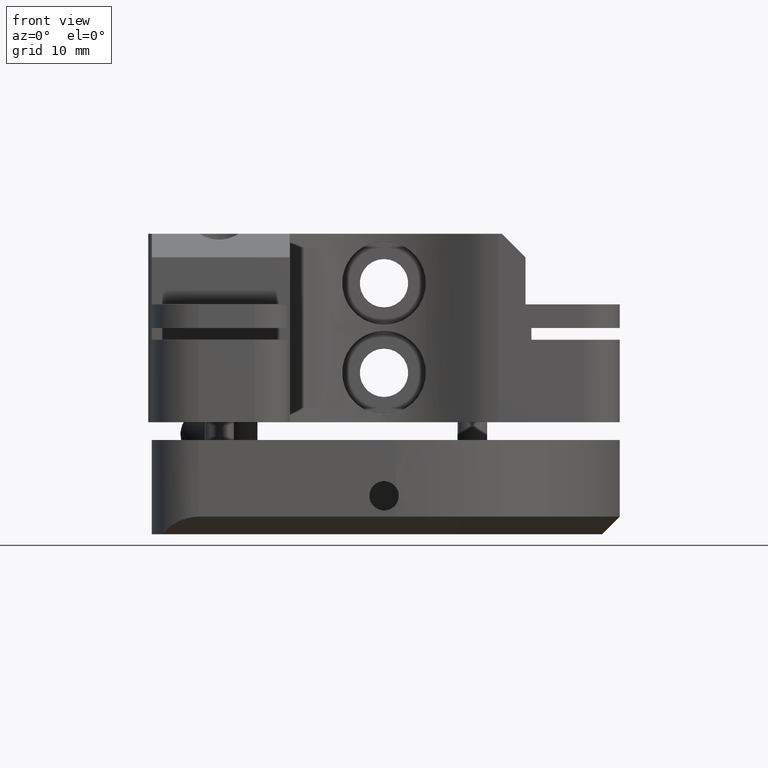
[diagram: clean part render]
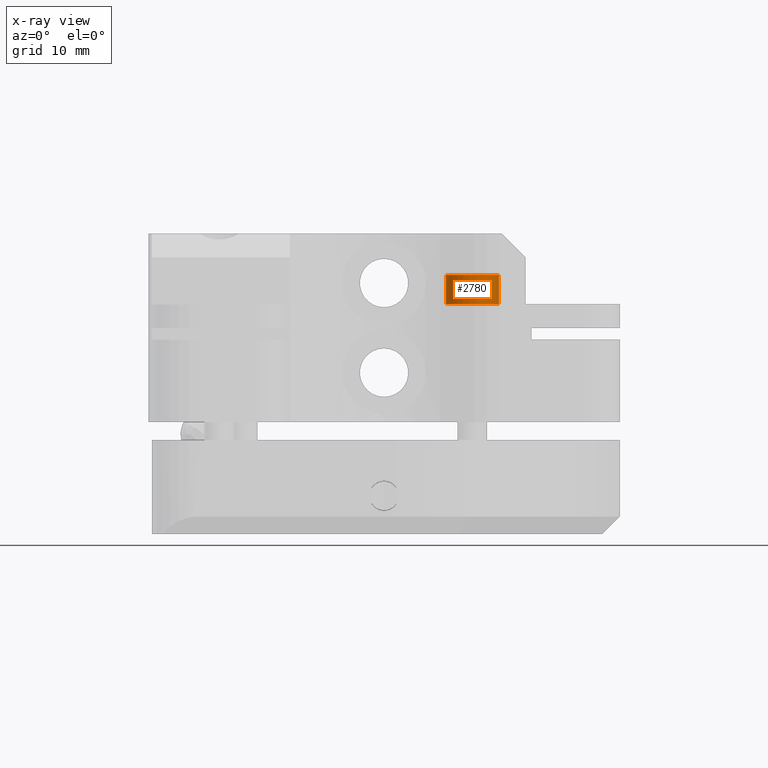
[diagram: x-ray — body ghosted, one internal face saturated and labeled with its STEP entity id]
A machine part, front view, then the same camera in x-ray: the body is ghosted and one INTERNAL B-rep face — a face not visible from any outside direction — is saturated and labeled: STEP entity #2780.
In plain terms, the highlighted cylindrical surface (bore or boss wall) has radius 2.25 mm, axis along (0, 0, 1).
Its self-contained STEP definition (entity closure, byte-faithful):
#35 = DIRECTION ( 'NONE',  ( 1.000000000000000000, 0.000000000000000000, 0.000000000000000000 ) ) ;
#260 = CARTESIAN_POINT ( 'NONE',  ( 7.500000058899090050, 13.99999994110090107, 19.50000000000000000 ) ) ;
#673 = VERTEX_POINT ( 'NONE', #3551 ) ;
#893 = VERTEX_POINT ( 'NONE', #3802 ) ;
#1006 = CYLINDRICAL_SURFACE ( 'NONE', #4459, 2.249999999999769518 ) ;
#1024 = EDGE_LOOP ( 'NONE', ( #4120 ) ) ;
#1213 = DIRECTION ( 'NONE',  ( 0.000000000000000000, 0.000000000000000000, 1.000000000000000000 ) ) ;
#1491 = CIRCLE ( 'NONE', #2498, 2.249999999999769518 ) ;
#1771 = EDGE_CURVE ( 'NONE', #893, #893, #1491, .T. ) ;
#2241 = AXIS2_PLACEMENT_3D ( 'NONE', #2389, #1213, #4194 ) ;
#2248 = CARTESIAN_POINT ( 'NONE',  ( 7.500000058899090050, 13.99999994110090107, 22.00000000000000000 ) ) ;
#2389 = CARTESIAN_POINT ( 'NONE',  ( 7.500000058899090050, 13.99999994110090107, 19.50000000000000000 ) ) ;
#2498 = AXIS2_PLACEMENT_3D ( 'NONE', #2248, #3397, #35 ) ;
#2564 = ORIENTED_EDGE ( 'NONE', *, *, #3095, .T. ) ;
#2658 = EDGE_LOOP ( 'NONE', ( #2564 ) ) ;
#2780 = ADVANCED_FACE ( 'NONE', ( #3650, #3229 ), #1006, .T. ) ;
#2918 = DIRECTION ( 'NONE',  ( 1.000000000000000000, 0.000000000000000000, 0.000000000000000000 ) ) ;
#3095 = EDGE_CURVE ( 'NONE', #673, #673, #4569, .T. ) ;
#3229 = FACE_OUTER_BOUND ( 'NONE', #2658, .T. ) ;
#3397 = DIRECTION ( 'NONE',  ( -0.000000000000000000, -0.000000000000000000, -1.000000000000000000 ) ) ;
#3551 = CARTESIAN_POINT ( 'NONE',  ( 9.750000058898859123, 13.99999994110090107, 19.50000000000000000 ) ) ;
#3650 = FACE_OUTER_BOUND ( 'NONE', #1024, .T. ) ;
#3802 = CARTESIAN_POINT ( 'NONE',  ( 9.750000058898859123, 13.99999994110090107, 22.00000000000000000 ) ) ;
#4120 = ORIENTED_EDGE ( 'NONE', *, *, #1771, .T. ) ;
#4194 = DIRECTION ( 'NONE',  ( 1.000000000000000000, 0.000000000000000000, 0.000000000000000000 ) ) ;
#4426 = DIRECTION ( 'NONE',  ( 0.000000000000000000, 0.000000000000000000, 1.000000000000000000 ) ) ;
#4459 = AXIS2_PLACEMENT_3D ( 'NONE', #260, #4426, #2918 ) ;
#4569 = CIRCLE ( 'NONE', #2241, 2.249999999999769518 ) ;